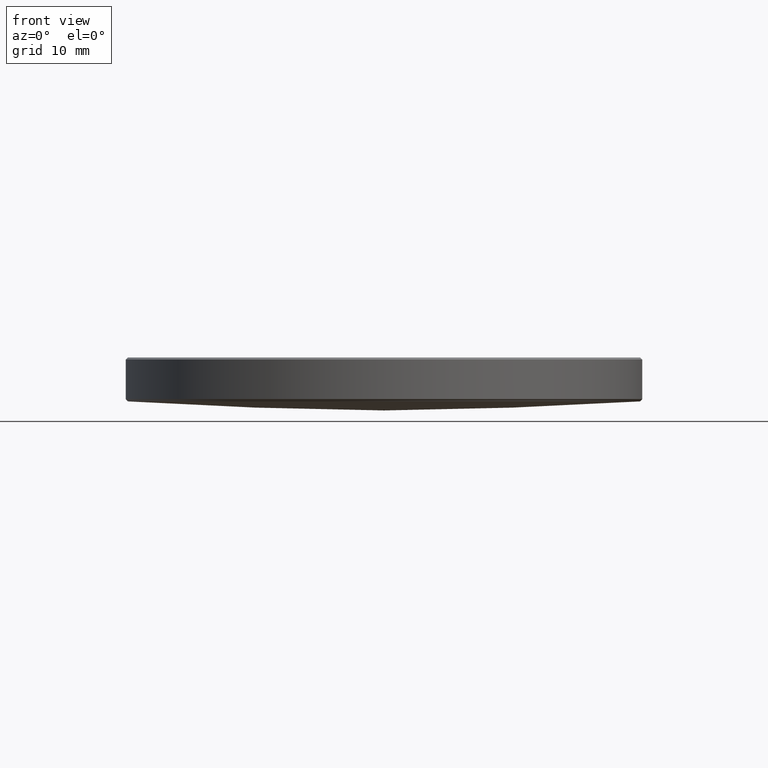
[diagram: clean part render]
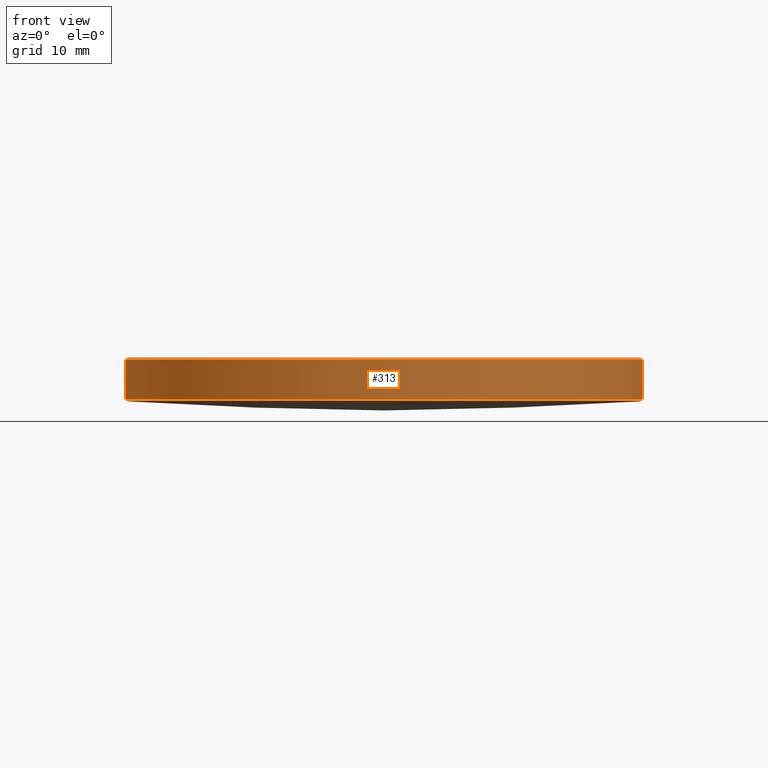
[diagram: same view with one face highlighted and labeled with its STEP entity id]
A machine part, front view. The second image highlights one B-rep face of the part: STEP entity #313.
In plain terms, the highlighted cylindrical surface (partial cylindrical patch) has radius 25.4 mm, axis along (-0, -0, -1).
Its self-contained STEP definition (entity closure, byte-faithful):
#4 = AXIS2_PLACEMENT_3D ( 'NONE', #190, #291, #84 ) ;
#6 = AXIS2_PLACEMENT_3D ( 'NONE', #225, #30, #304 ) ;
#8 = VECTOR ( 'NONE', #161, 1000.000000000000000 ) ;
#14 = ORIENTED_EDGE ( 'NONE', *, *, #48, .T. ) ;
#30 = DIRECTION ( 'NONE',  ( -0.000000000000000000, -0.000000000000000000, 1.000000000000000000 ) ) ;
#39 = VERTEX_POINT ( 'NONE', #227 ) ;
#48 = EDGE_CURVE ( 'NONE', #281, #39, #250, .T. ) ;
#53 = CARTESIAN_POINT ( 'NONE',  ( -25.39999999999999858, 0.000000000000000000, 20.00000000000000000 ) ) ;
#59 = CARTESIAN_POINT ( 'NONE',  ( 25.39999999999999858, 3.110602869834276865E-15, 13.21592418636929978 ) ) ;
#72 = CARTESIAN_POINT ( 'NONE',  ( 0.000000000000000000, 0.000000000000000000, 20.00000000000000000 ) ) ;
#84 = DIRECTION ( 'NONE',  ( 1.000000000000000000, 0.000000000000000000, 0.000000000000000000 ) ) ;
#88 = CARTESIAN_POINT ( 'NONE',  ( 25.39999999999999858, 3.110602869834276865E-15, 17.09999999999989484 ) ) ;
#98 = EDGE_CURVE ( 'NONE', #39, #318, #315, .T. ) ;
#119 = LINE ( 'NONE', #196, #8 ) ;
#124 = AXIS2_PLACEMENT_3D ( 'NONE', #72, #150, #282 ) ;
#150 = DIRECTION ( 'NONE',  ( -0.000000000000000000, -0.000000000000000000, -1.000000000000000000 ) ) ;
#161 = DIRECTION ( 'NONE',  ( -0.000000000000000000, -0.000000000000000000, -1.000000000000000000 ) ) ;
#162 = VECTOR ( 'NONE', #183, 1000.000000000000000 ) ;
#172 = ORIENTED_EDGE ( 'NONE', *, *, #234, .T. ) ;
#183 = DIRECTION ( 'NONE',  ( -0.000000000000000000, -0.000000000000000000, -1.000000000000000000 ) ) ;
#188 = CYLINDRICAL_SURFACE ( 'NONE', #124, 25.39999999999999858 ) ;
#190 = CARTESIAN_POINT ( 'NONE',  ( 0.000000000000000000, 0.000000000000000000, 17.09999999999989484 ) ) ;
#196 = CARTESIAN_POINT ( 'NONE',  ( 25.39999999999999858, 3.110602869834276865E-15, 20.00000000000000000 ) ) ;
#218 = VERTEX_POINT ( 'NONE', #88 ) ;
#220 = CIRCLE ( 'NONE', #4, 25.39999999999999858 ) ;
#225 = CARTESIAN_POINT ( 'NONE',  ( 0.000000000000000000, 0.000000000000000000, 13.21592418636929978 ) ) ;
#227 = CARTESIAN_POINT ( 'NONE',  ( -25.39999999999999858, 0.000000000000000000, 13.21592418636929978 ) ) ;
#234 = EDGE_CURVE ( 'NONE', #218, #281, #220, .T. ) ;
#242 = EDGE_LOOP ( 'NONE', ( #295, #172, #14, #261 ) ) ;
#250 = LINE ( 'NONE', #53, #162 ) ;
#259 = EDGE_CURVE ( 'NONE', #218, #318, #119, .T. ) ;
#261 = ORIENTED_EDGE ( 'NONE', *, *, #98, .T. ) ;
#273 = FACE_OUTER_BOUND ( 'NONE', #242, .T. ) ;
#281 = VERTEX_POINT ( 'NONE', #323 ) ;
#282 = DIRECTION ( 'NONE',  ( -1.000000000000000000, 0.000000000000000000, 0.000000000000000000 ) ) ;
#291 = DIRECTION ( 'NONE',  ( 0.000000000000000000, 0.000000000000000000, -1.000000000000000000 ) ) ;
#295 = ORIENTED_EDGE ( 'NONE', *, *, #259, .F. ) ;
#304 = DIRECTION ( 'NONE',  ( -1.000000000000000000, 0.000000000000000000, 0.000000000000000000 ) ) ;
#313 = ADVANCED_FACE ( 'NONE', ( #273 ), #188, .T. ) ;
#315 = CIRCLE ( 'NONE', #6, 25.39999999999999858 ) ;
#318 = VERTEX_POINT ( 'NONE', #59 ) ;
#323 = CARTESIAN_POINT ( 'NONE',  ( -25.39999999999999858, 0.000000000000000000, 17.09999999999989484 ) ) ;